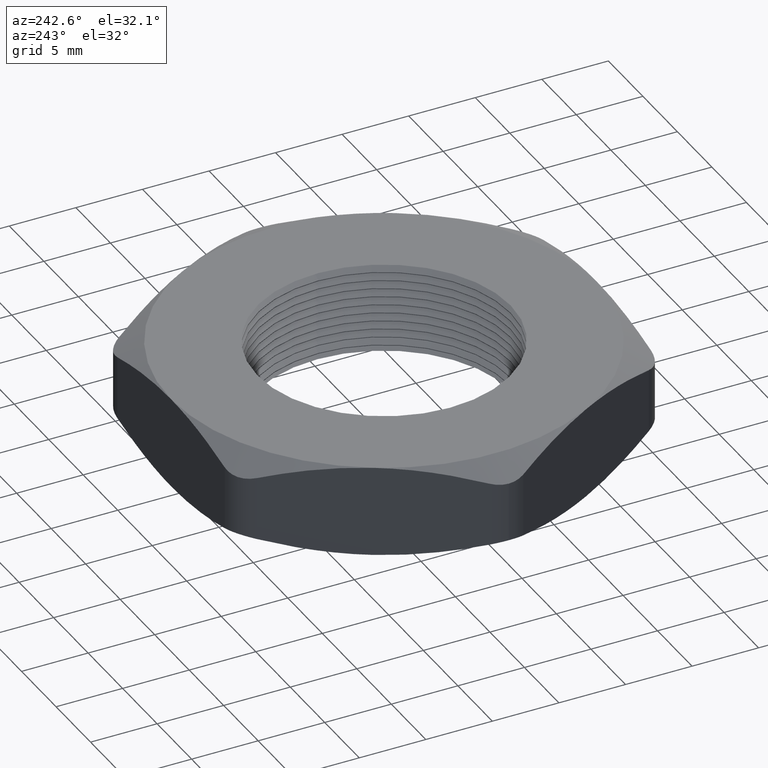
[diagram: clean part render]
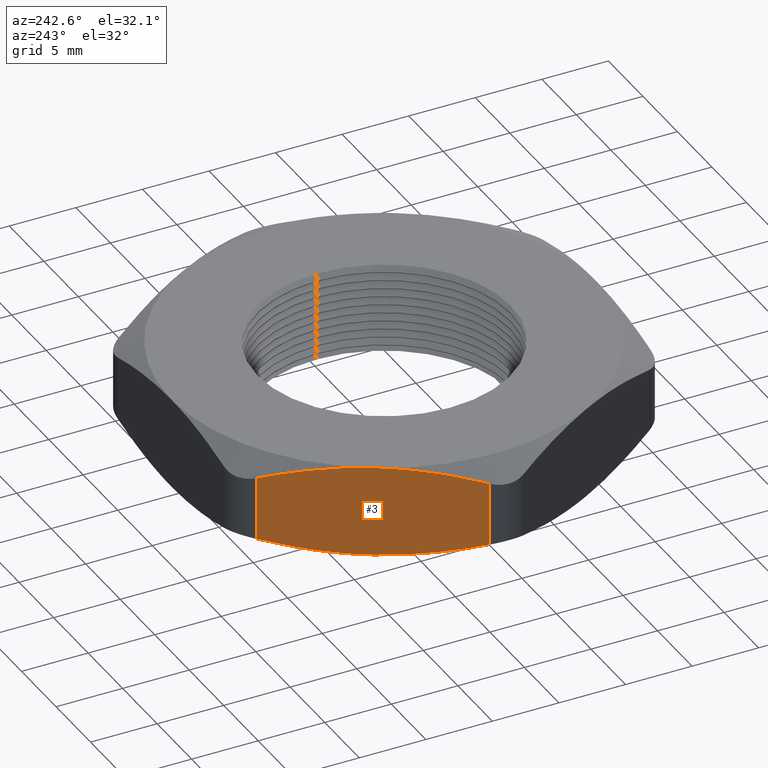
[diagram: same view with one face highlighted and labeled with its STEP entity id]
A machine part, auxiliary view. The second image highlights one B-rep face of the part: STEP entity #3.
In plain terms, the highlighted planar face has unit normal (0.866, -0.5, 0).
Its self-contained STEP definition (entity closure, byte-faithful):
#1 = EDGE_CURVE ( 'NONE', #38, #9, #931, .T. ) ;
#3 = ADVANCED_FACE ( 'NONE', ( #930 ), #928, .F. ) ;
#4 = VERTEX_POINT ( 'NONE', #1021 ) ;
#7 = ORIENTED_EDGE ( 'NONE', *, *, #51, .F. ) ;
#9 = VERTEX_POINT ( 'NONE', #898 ) ;
#10 = ORIENTED_EDGE ( 'NONE', *, *, #1, .F. ) ;
#11 = ORIENTED_EDGE ( 'NONE', *, *, #56, .T. ) ;
#36 = EDGE_LOOP ( 'NONE', ( #43, #11, #10, #7, #52, #49 ) ) ;
#38 = VERTEX_POINT ( 'NONE', #961 ) ;
#43 = ORIENTED_EDGE ( 'NONE', *, *, #757, .F. ) ;
#49 = ORIENTED_EDGE ( 'NONE', *, *, #50, .F. ) ;
#50 = EDGE_CURVE ( 'NONE', #636, #4, #951, .T. ) ;
#51 = EDGE_CURVE ( 'NONE', #59, #38, #1004, .T. ) ;
#52 = ORIENTED_EDGE ( 'NONE', *, *, #53, .T. ) ;
#53 = EDGE_CURVE ( 'NONE', #59, #4, #1003, .T. ) ;
#56 = EDGE_CURVE ( 'NONE', #660, #9, #993, .T. ) ;
#59 = VERTEX_POINT ( 'NONE', #988 ) ;
#636 = VERTEX_POINT ( 'NONE', #1598 ) ;
#660 = VERTEX_POINT ( 'NONE', #1692 ) ;
#757 = EDGE_CURVE ( 'NONE', #660, #636, #1926, .T. ) ;
#898 = CARTESIAN_POINT ( 'NONE',  ( -0.6985938257194470600, 0.05000000000000021100, 0.2293655980129112000 ) ) ;
#923 = CARTESIAN_POINT ( 'NONE',  ( -0.6101169651734221800, 0.2032464177599014900, 0.2627234563616408500 ) ) ;
#924 = CARTESIAN_POINT ( 'NONE',  ( -0.5973066776875477500, 0.2254344865449998100, 0.2654273647504906100 ) ) ;
#925 = CARTESIAN_POINT ( 'NONE',  ( -0.5715396779322158300, 0.2700642392798497400, 0.2690672197617951500 ) ) ;
#926 = CARTESIAN_POINT ( 'NONE',  ( -0.5585351079282791000, 0.2925888152572542200, 0.2700000000000000700 ) ) ;
#927 = CARTESIAN_POINT ( 'NONE',  ( -0.5455960043841965300, 0.3150000000000001100, 0.2700000000000000200 ) ) ;
#928 = PLANE ( 'NONE',  #929 ) ;
#929 = AXIS2_PLACEMENT_3D ( 'NONE', #1020, #1019, #1018 ) ;
#930 = FACE_OUTER_BOUND ( 'NONE', #36, .T. ) ;
#931 = B_SPLINE_CURVE_WITH_KNOTS ( 'NONE', 3,
 ( #927, #926, #925, #924, #923, #1024, #1023, #1022 ),
 .UNSPECIFIED., .F., .F.,
 ( 4, 2, 2, 4 ),
 ( 0.009348348844219091600, 0.01130023374885202000, 0.01325211865348495000, 0.01715588846275080800 ),
 .UNSPECIFIED. ) ;
#946 = CARTESIAN_POINT ( 'NONE',  ( -0.4810750435949702800, 0.4267535822400988500, 0.007276543638359152800 ) ) ;
#947 = CARTESIAN_POINT ( 'NONE',  ( -0.4938853310808448100, 0.4045655134550002500, 0.004572635249509383900 ) ) ;
#948 = CARTESIAN_POINT ( 'NONE',  ( -0.5196523308361770100, 0.3599357607201505400, 0.0009327802382048900800 ) ) ;
#949 = CARTESIAN_POINT ( 'NONE',  ( -0.5326569008401135200, 0.3374111847427459500, -9.671682304229464100E-017 ) ) ;
#950 = CARTESIAN_POINT ( 'NONE',  ( -0.5455960043841964200, 0.3150000000000001100, 0.0000000000000000000 ) ) ;
#951 = B_SPLINE_CURVE_WITH_KNOTS ( 'NONE', 3,
 ( #950, #949, #948, #947, #946, #1007, #1006, #1005 ),
 .UNSPECIFIED., .F., .F.,
 ( 4, 2, 2, 4 ),
 ( 0.009348348844219082900, 0.01130023374885201500, 0.01325211865348494500, 0.01715588846275080800 ),
 .UNSPECIFIED. ) ;
#961 = CARTESIAN_POINT ( 'NONE',  ( -0.5455960043841965300, 0.3150000000000001100, 0.2700000000000000200 ) ) ;
#988 = CARTESIAN_POINT ( 'NONE',  ( -0.3925981830489455000, 0.5800000000000000700, 0.2293655980129111800 ) ) ;
#990 = DIRECTION ( 'NONE',  ( -0.0000000000000000000, -0.0000000000000000000, 1.000000000000000000 ) ) ;
#991 = VECTOR ( 'NONE', #990, 39.37007874015748100 ) ;
#992 = CARTESIAN_POINT ( 'NONE',  ( -0.6985938257194470600, 0.05000000000000028700, 0.2700000000000000200 ) ) ;
#993 = LINE ( 'NONE', #992, #991 ) ;
#994 = DIRECTION ( 'NONE',  ( 0.0000000000000000000, 0.0000000000000000000, -1.000000000000000000 ) ) ;
#995 = VECTOR ( 'NONE', #994, 39.37007874015748100 ) ;
#996 = CARTESIAN_POINT ( 'NONE',  ( -0.5455960043841965300, 0.3150000000000001100, 0.2700000000000000200 ) ) ;
#997 = CARTESIAN_POINT ( 'NONE',  ( -0.5196099590817032700, 0.3600091507517049800, 0.2700000000000001800 ) ) ;
#998 = CARTESIAN_POINT ( 'NONE',  ( -0.4938937659638384900, 0.4045509038090994200, 0.2662427725865012000 ) ) ;
#999 = CARTESIAN_POINT ( 'NONE',  ( -0.4429276161693835900, 0.4928268647192615100, 0.2522367774344309600 ) ) ;
#1000 = CARTESIAN_POINT ( 'NONE',  ( -0.4176755892559374500, 0.5365646583274469300, 0.2420168341824112700 ) ) ;
#1001 = CARTESIAN_POINT ( 'NONE',  ( -0.3925981830489455000, 0.5800000000000000700, 0.2293655980129111800 ) ) ;
#1002 = CARTESIAN_POINT ( 'NONE',  ( -0.3925981830489455000, 0.5800000000000000700, 0.2700000000000000200 ) ) ;
#1003 = LINE ( 'NONE', #1002, #995 ) ;
#1004 = B_SPLINE_CURVE_WITH_KNOTS ( 'NONE', 3,
 ( #1001, #1000, #999, #998, #997, #996 ),
 .UNSPECIFIED., .F., .F.,
 ( 4, 2, 4 ),
 ( 0.001508274084134161000, 0.005428311464176626700, 0.009348348844219093300 ),
 .UNSPECIFIED. ) ;
#1005 = CARTESIAN_POINT ( 'NONE',  ( -0.3925981830489455000, 0.5800000000000000700, 0.04063440198708884900 ) ) ;
#1006 = CARTESIAN_POINT ( 'NONE',  ( -0.4176211247064826000, 0.5366589936943139100, 0.02801064249808474600 ) ) ;
#1007 = CARTESIAN_POINT ( 'NONE',  ( -0.4428433602086229200, 0.4929728003241396500, 0.01779319626366875800 ) ) ;
#1018 = DIRECTION ( 'NONE',  ( 0.5000000000000000000, 0.8660254037844386000, 0.0000000000000000000 ) ) ;
#1019 = DIRECTION ( 'NONE',  ( 0.8660254037844387100, -0.5000000000000001100, 0.0000000000000000000 ) ) ;
#1020 = CARTESIAN_POINT ( 'NONE',  ( -0.3637306695894641500, 0.6300000000000001200, 0.2700000000000000200 ) ) ;
#1021 = CARTESIAN_POINT ( 'NONE',  ( -0.3925981830489455000, 0.5800000000000000700, 0.04063440198708884900 ) ) ;
#1022 = CARTESIAN_POINT ( 'NONE',  ( -0.6985938257194470600, 0.05000000000000021100, 0.2293655980129112000 ) ) ;
#1023 = CARTESIAN_POINT ( 'NONE',  ( -0.6735708840619099000, 0.09334100630568635500, 0.2419893575019153300 ) ) ;
#1024 = CARTESIAN_POINT ( 'NONE',  ( -0.6483486485597698100, 0.1370271996758606900, 0.2522068037363313600 ) ) ;
#1598 = CARTESIAN_POINT ( 'NONE',  ( -0.5455960043841964200, 0.3150000000000001100, 0.0000000000000000000 ) ) ;
#1692 = CARTESIAN_POINT ( 'NONE',  ( -0.6985938257194470600, 0.05000000000000028700, 0.04063440198708880000 ) ) ;
#1782 = CARTESIAN_POINT ( 'NONE',  ( -0.5455960043841964200, 0.3150000000000001100, 0.0000000000000000000 ) ) ;
#1783 = CARTESIAN_POINT ( 'NONE',  ( -0.5715820496866896900, 0.2699908492482950800, -1.019107357011473200E-016 ) ) ;
#1784 = CARTESIAN_POINT ( 'NONE',  ( -0.5972982428045541200, 0.2254490961909007800, 0.003757227413498738900 ) ) ;
#1785 = CARTESIAN_POINT ( 'NONE',  ( -0.6482643925990089200, 0.1371731352807388800, 0.01776322256556910400 ) ) ;
#1786 = CARTESIAN_POINT ( 'NONE',  ( -0.6735164195124551100, 0.09343534167255335100, 0.02798316581758872700 ) ) ;
#1787 = CARTESIAN_POINT ( 'NONE',  ( -0.6985938257194470600, 0.05000000000000028700, 0.04063440198708880000 ) ) ;
#1926 = B_SPLINE_CURVE_WITH_KNOTS ( 'NONE', 3,
 ( #1787, #1786, #1785, #1784, #1783, #1782 ),
 .UNSPECIFIED., .F., .F.,
 ( 4, 2, 4 ),
 ( 0.001508274084134160600, 0.005428311464176622400, 0.009348348844219082900 ),
 .UNSPECIFIED. ) ;